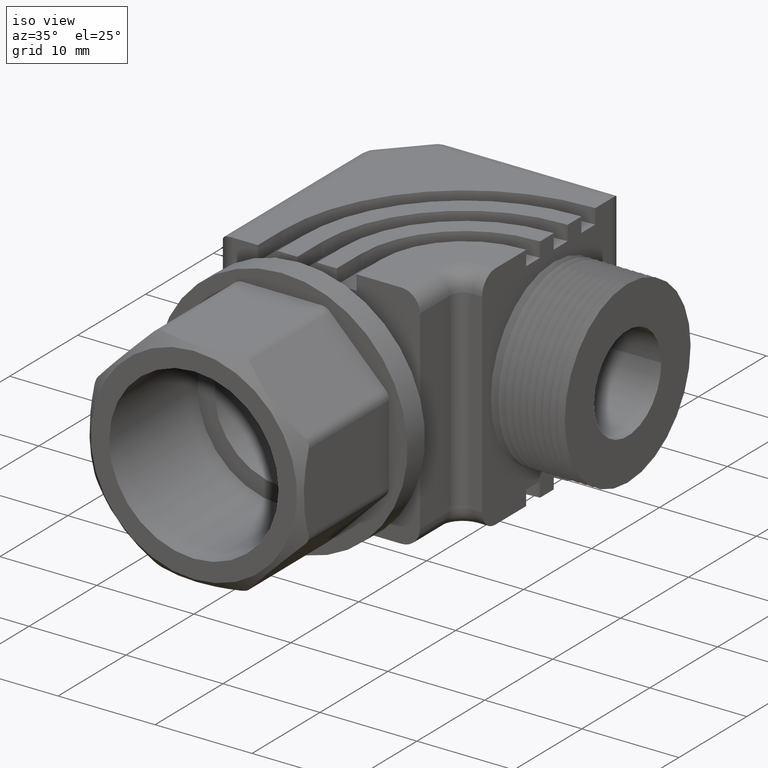
[diagram: clean part render]
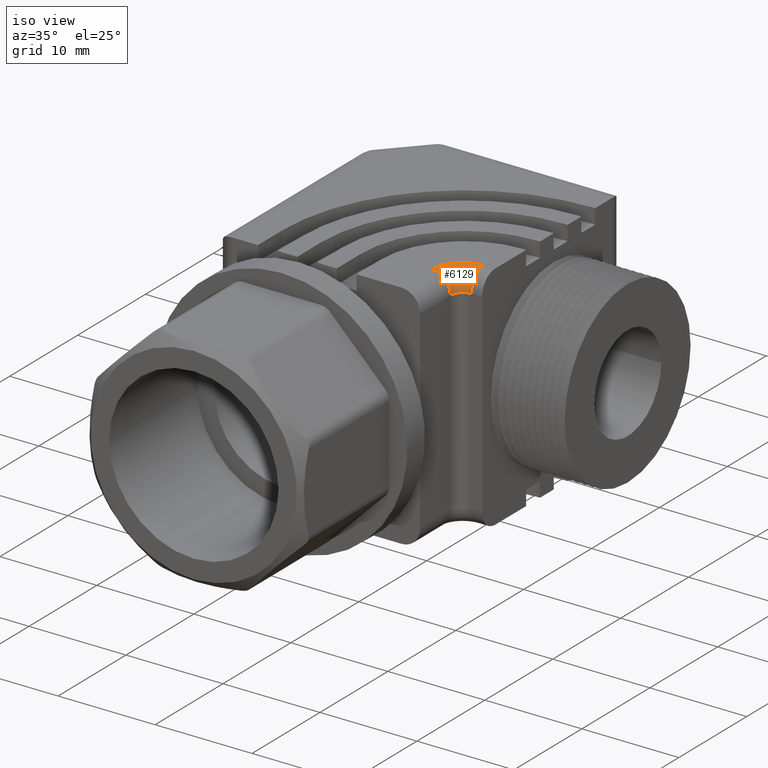
[diagram: same view with one face highlighted and labeled with its STEP entity id]
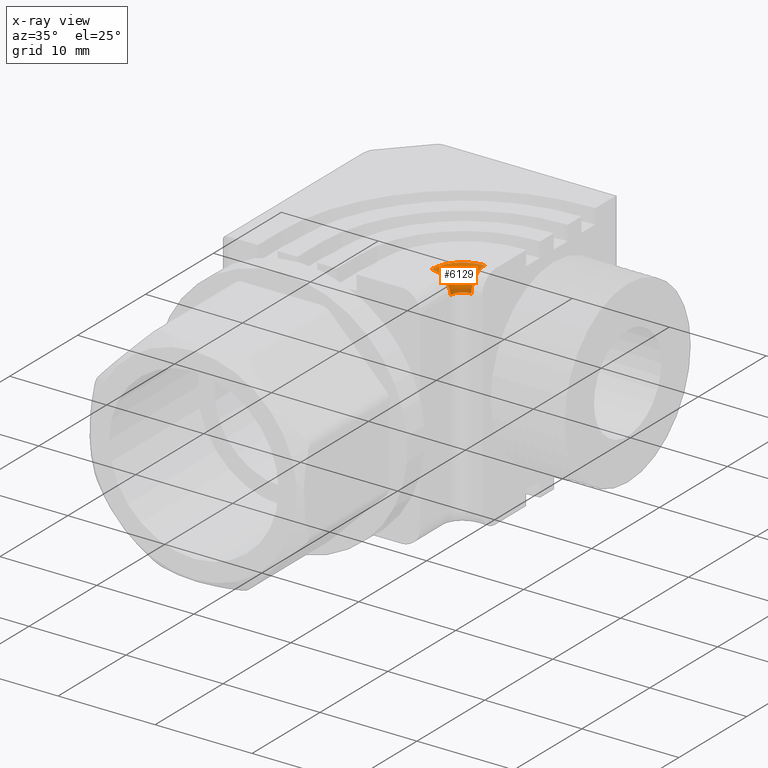
[diagram: x-ray of the same camera — body ghosted, the highlighted face saturated]
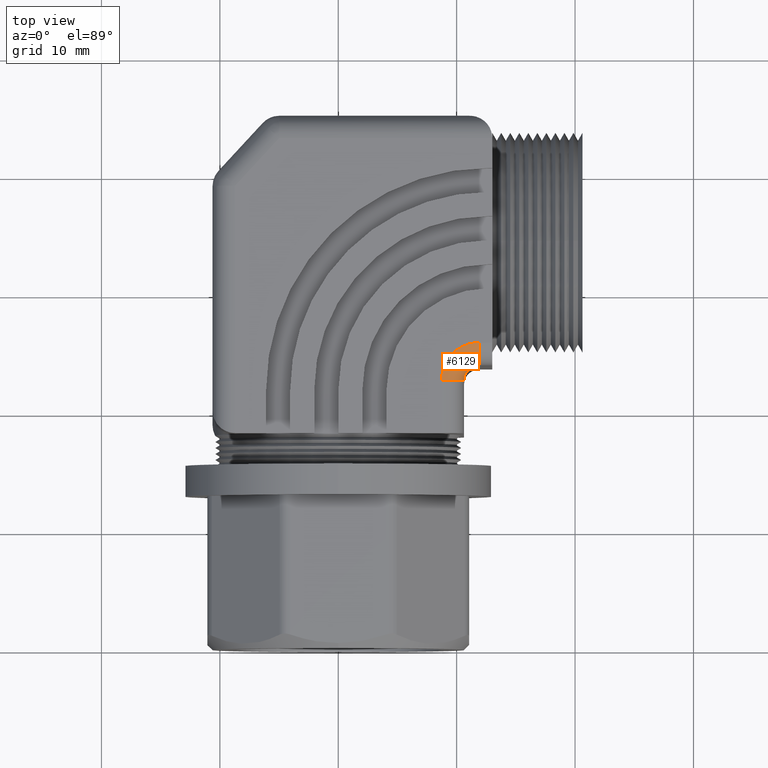
[diagram: same view with one face highlighted and labeled with its STEP entity id]
A machine part, iso view. The second image highlights one B-rep face of the part: STEP entity #6129.
The next image is the same camera in x-ray: the body ghosted, the highlighted face saturated — about 0% of this face is hidden behind the body in this view.
A second angle (top view) of the same face is appended — the face is thin or edge-on in the first view.
In plain terms, the highlighted toroidal blend (fillet) surface has major radius 3.175 mm and minor (blend) radius 1.905 mm.
Its self-contained STEP definition (entity closure, byte-faithful):
#151 = VERTEX_POINT ( 'NONE', #1892 ) ;
#153 = EDGE_CURVE ( 'NONE', #151, #154, #1891, .T. ) ;
#154 = VERTEX_POINT ( 'NONE', #1948 ) ;
#530 = VERTEX_POINT ( 'NONE', #2600 ) ;
#532 = EDGE_CURVE ( 'NONE', #530, #576, #2599, .T. ) ;
#576 = VERTEX_POINT ( 'NONE', #2705 ) ;
#1890 = CARTESIAN_POINT ( 'NONE',  ( 0.4680177549999999200, 0.8899999999999999000, 0.4699999999999999700 ) ) ;
#1891 = CIRCLE ( 'NONE', #1951, 0.1250000000000000300 ) ;
#1892 = CARTESIAN_POINT ( 'NONE',  ( 0.3430177549999999200, 0.8899999999999999000, 0.4699999999999999700 ) ) ;
#1948 = CARTESIAN_POINT ( 'NONE',  ( 0.4680177549999999200, 1.014999999999999900, 0.4699999999999999700 ) ) ;
#1949 = DIRECTION ( 'NONE',  ( 1.000000000000000000, 0.0000000000000000000, 0.0000000000000000000 ) ) ;
#1950 = DIRECTION ( 'NONE',  ( -0.0000000000000000000, -0.0000000000000000000, -1.000000000000000000 ) ) ;
#1951 = AXIS2_PLACEMENT_3D ( 'NONE', #1890, #1950, #1949 ) ;
#2595 = DIRECTION ( 'NONE',  ( 1.000000000000000000, 0.0000000000000000000, 0.0000000000000000000 ) ) ;
#2596 = DIRECTION ( 'NONE',  ( 0.0000000000000000000, 0.0000000000000000000, 1.000000000000000000 ) ) ;
#2597 = CARTESIAN_POINT ( 'NONE',  ( 0.4680177549999999200, 0.8899999999999999000, 0.3949999999999999600 ) ) ;
#2598 = AXIS2_PLACEMENT_3D ( 'NONE', #2597, #2596, #2595 ) ;
#2599 = CIRCLE ( 'NONE', #2598, 0.05000000000000001000 ) ;
#2600 = CARTESIAN_POINT ( 'NONE',  ( 0.4680177549999999200, 0.9399999999999999500, 0.3949999999999999600 ) ) ;
#2705 = CARTESIAN_POINT ( 'NONE',  ( 0.4180177549999999400, 0.8899999999999999000, 0.3949999999999999600 ) ) ;
#4965 = DIRECTION ( 'NONE',  ( 1.000000000000000000, 0.0000000000000000000, -0.0000000000000000000 ) ) ;
#4966 = CARTESIAN_POINT ( 'NONE',  ( 0.4680177549999999200, 1.014999999999999900, 0.3949999999999999600 ) ) ;
#4967 = AXIS2_PLACEMENT_3D ( 'NONE', #4966, #4965, #5021 ) ;
#4968 = CIRCLE ( 'NONE', #4967, 0.07500000000000002500 ) ;
#5010 = DIRECTION ( 'NONE',  ( 0.0000000000000000000, 0.0000000000000000000, 1.000000000000000000 ) ) ;
#5011 = DIRECTION ( 'NONE',  ( 0.0000000000000000000, 1.000000000000000000, 0.0000000000000000000 ) ) ;
#5012 = CARTESIAN_POINT ( 'NONE',  ( 0.3430177549999999200, 0.8899999999999999000, 0.3949999999999999600 ) ) ;
#5013 = AXIS2_PLACEMENT_3D ( 'NONE', #5012, #5011, #5010 ) ;
#5014 = DIRECTION ( 'NONE',  ( 1.000000000000000000, 0.0000000000000000000, 0.0000000000000000000 ) ) ;
#5015 = DIRECTION ( 'NONE',  ( 0.0000000000000000000, 0.0000000000000000000, 1.000000000000000000 ) ) ;
#5016 = CARTESIAN_POINT ( 'NONE',  ( 0.4680177549999999200, 0.8899999999999999000, 0.3949999999999999600 ) ) ;
#5017 = AXIS2_PLACEMENT_3D ( 'NONE', #5016, #5015, #5014 ) ;
#5018 = CIRCLE ( 'NONE', #5013, 0.07500000000000002500 ) ;
#5019 = TOROIDAL_SURFACE ( 'NONE', #5017, 0.1250000000000000000, 0.07499999999999999700 ) ;
#5020 = FACE_OUTER_BOUND ( 'NONE', #6126, .T. ) ;
#5021 = DIRECTION ( 'NONE',  ( 0.0000000000000000000, 0.0000000000000000000, -1.000000000000000000 ) ) ;
#6124 = EDGE_CURVE ( 'NONE', #154, #530, #4968, .T. ) ;
#6125 = ORIENTED_EDGE ( 'NONE', *, *, #532, .F. ) ;
#6126 = EDGE_LOOP ( 'NONE', ( #6127, #6125, #6128, #6438 ) ) ;
#6127 = ORIENTED_EDGE ( 'NONE', *, *, #6132, .T. ) ;
#6128 = ORIENTED_EDGE ( 'NONE', *, *, #6124, .F. ) ;
#6129 = ADVANCED_FACE ( 'NONE', ( #5020 ), #5019, .T. ) ;
#6132 = EDGE_CURVE ( 'NONE', #151, #576, #5018, .T. ) ;
#6438 = ORIENTED_EDGE ( 'NONE', *, *, #153, .F. ) ;